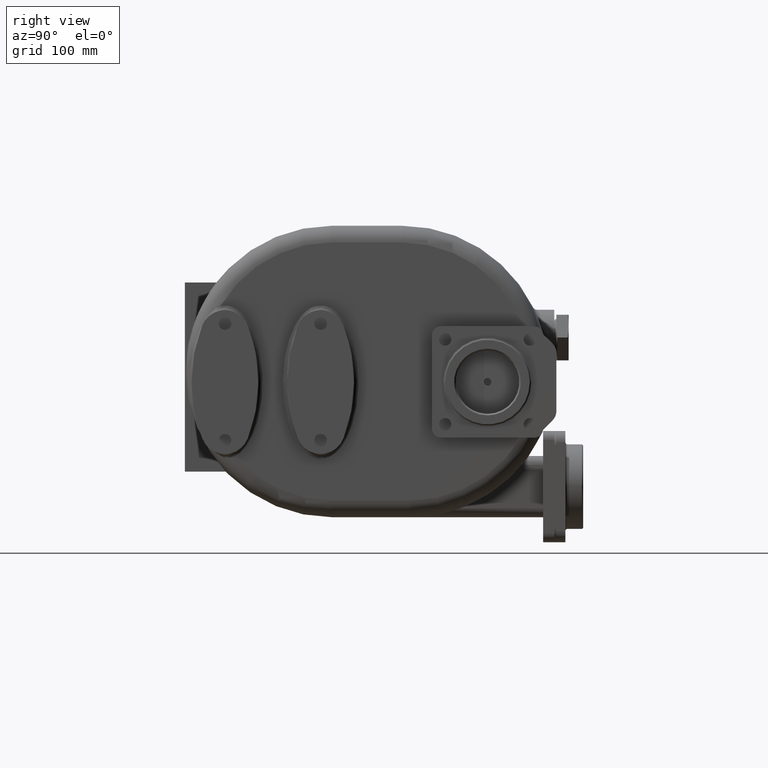
[diagram: clean part render]
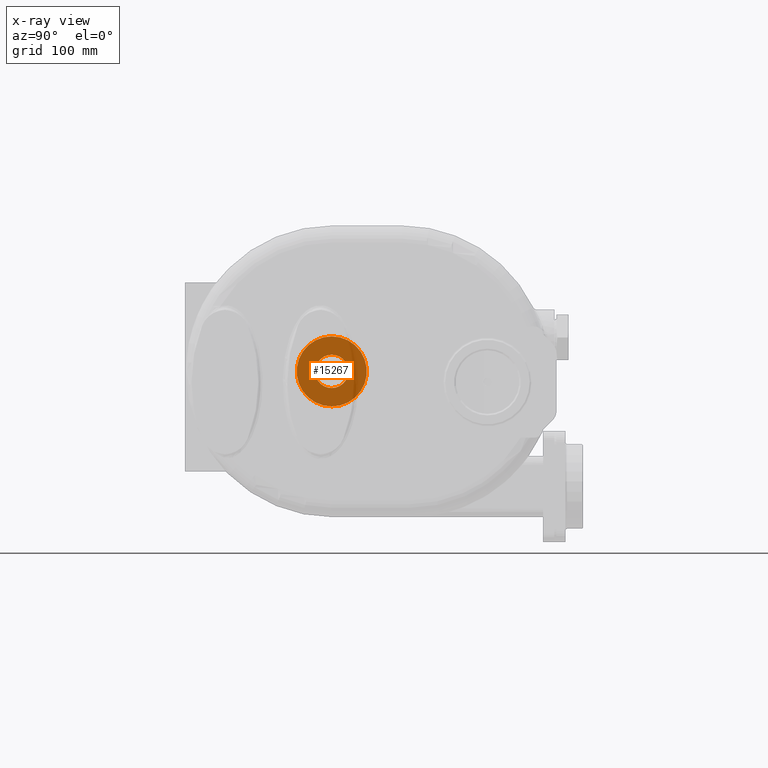
[diagram: x-ray — body ghosted, one internal face saturated and labeled with its STEP entity id]
A machine part, right view, then the same camera in x-ray: the body is ghosted and one INTERNAL B-rep face — a face not visible from any outside direction — is saturated and labeled: STEP entity #15267.
In plain terms, the highlighted planar face has unit normal (-1, 0, 0).
Its self-contained STEP definition (entity closure, byte-faithful):
#1654=CARTESIAN_POINT('',(-2.725E2,1.32E2,0.E0));
#1655=DIRECTION('',(-1.E0,0.E0,0.E0));
#1656=DIRECTION('',(0.E0,-1.714325330723E-14,-1.E0));
#1657=AXIS2_PLACEMENT_3D('',#1654,#1655,#1656);
#1659=CARTESIAN_POINT('',(-2.725E2,1.32E2,0.E0));
#1660=DIRECTION('',(-1.E0,0.E0,0.E0));
#1661=DIRECTION('',(0.E0,1.533870032752E-14,1.E0));
#1662=AXIS2_PLACEMENT_3D('',#1659,#1660,#1661);
#1664=CARTESIAN_POINT('',(-2.725E2,1.32E2,0.E0));
#1665=DIRECTION('',(1.E0,0.E0,0.E0));
#1666=DIRECTION('',(0.E0,-1.515824502955E-14,-1.E0));
#1667=AXIS2_PLACEMENT_3D('',#1664,#1665,#1666);
#1669=CARTESIAN_POINT('',(-2.725E2,1.32E2,0.E0));
#1670=DIRECTION('',(1.E0,0.E0,0.E0));
#1671=DIRECTION('',(0.E0,1.515824502955E-14,1.E0));
#1672=AXIS2_PLACEMENT_3D('',#1669,#1670,#1671);
#13336=CARTESIAN_POINT('',(-2.725E2,1.32E2,-1.5E1));
#13337=CARTESIAN_POINT('',(-2.725E2,1.32E2,1.5E1));
#13338=VERTEX_POINT('',#13336);
#13339=VERTEX_POINT('',#13337);
#13392=CARTESIAN_POINT('',(-2.725E2,1.32E2,-3.15E1));
#13393=CARTESIAN_POINT('',(-2.725E2,1.32E2,3.15E1));
#13394=VERTEX_POINT('',#13392);
#13395=VERTEX_POINT('',#13393);
#15251=CARTESIAN_POINT('',(-2.725E2,1.32E2,0.E0));
#15252=DIRECTION('',(-1.E0,0.E0,0.E0));
#15253=DIRECTION('',(0.E0,-1.E0,1.598721155460E-14));
#15254=AXIS2_PLACEMENT_3D('',#15251,#15252,#15253);
#15255=PLANE('',#15254);
#15256=ORIENTED_EDGE('',*,*,#15241,.F.);
#15258=ORIENTED_EDGE('',*,*,#15257,.F.);
#15259=EDGE_LOOP('',(#15256,#15258));
#15260=FACE_OUTER_BOUND('',#15259,.F.);
#15262=ORIENTED_EDGE('',*,*,#15261,.F.);
#15264=ORIENTED_EDGE('',*,*,#15263,.F.);
#15265=EDGE_LOOP('',(#15262,#15264));
#15266=FACE_BOUND('',#15265,.F.);
#15267=ADVANCED_FACE('',(#15260,#15266),#15255,.T.);
#1658=CIRCLE('',#1657,3.15E1);
#1663=CIRCLE('',#1662,3.15E1);
#1668=CIRCLE('',#1667,1.5E1);
#1673=CIRCLE('',#1672,1.5E1);
#15241=EDGE_CURVE('',#13394,#13395,#1658,.T.);
#15257=EDGE_CURVE('',#13395,#13394,#1663,.T.);
#15261=EDGE_CURVE('',#13338,#13339,#1668,.T.);
#15263=EDGE_CURVE('',#13339,#13338,#1673,.T.);